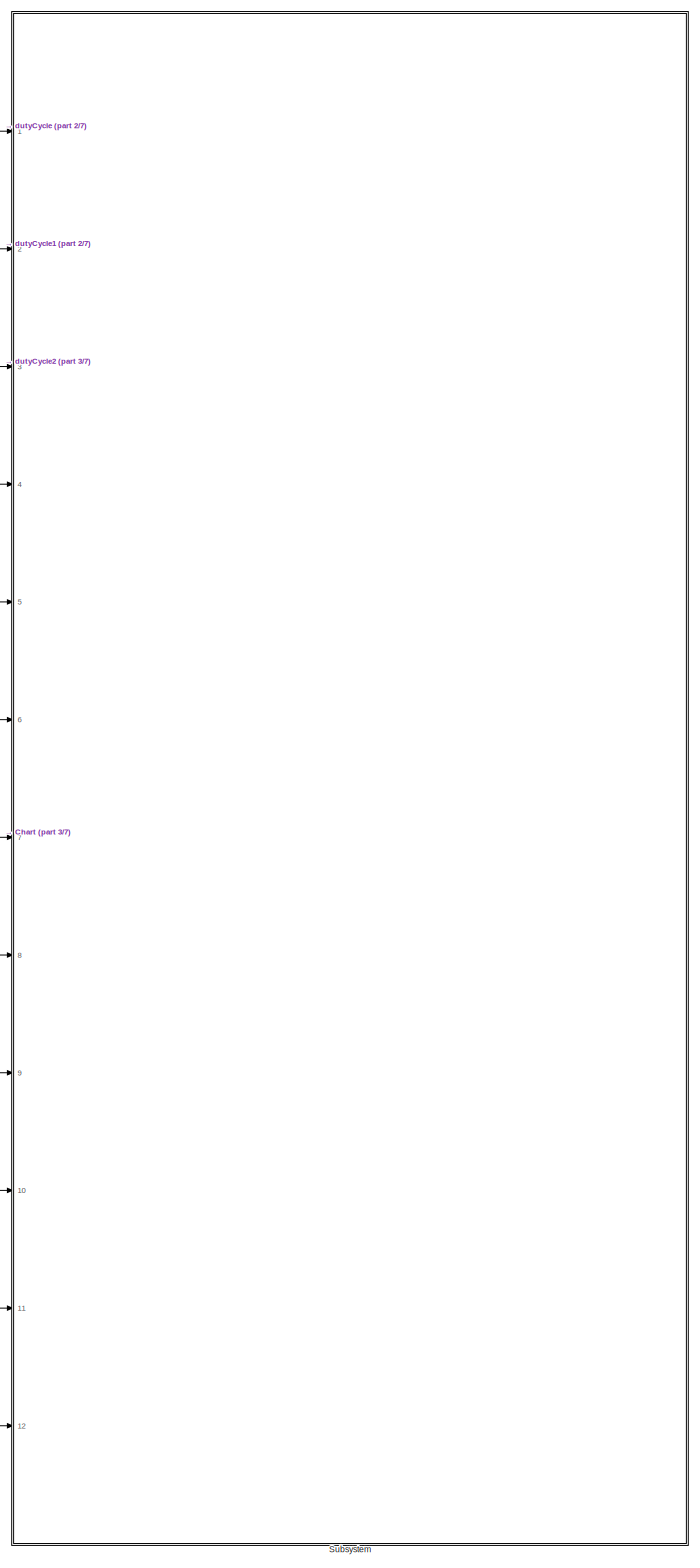
[diagram: root canvas - part 1/7, top right region]
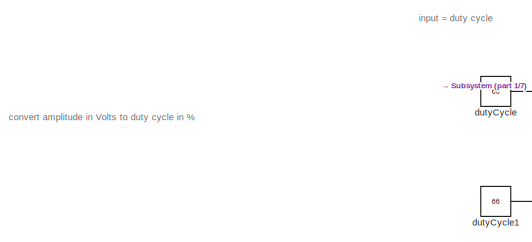
[diagram: root canvas - part 2/7, top center region]
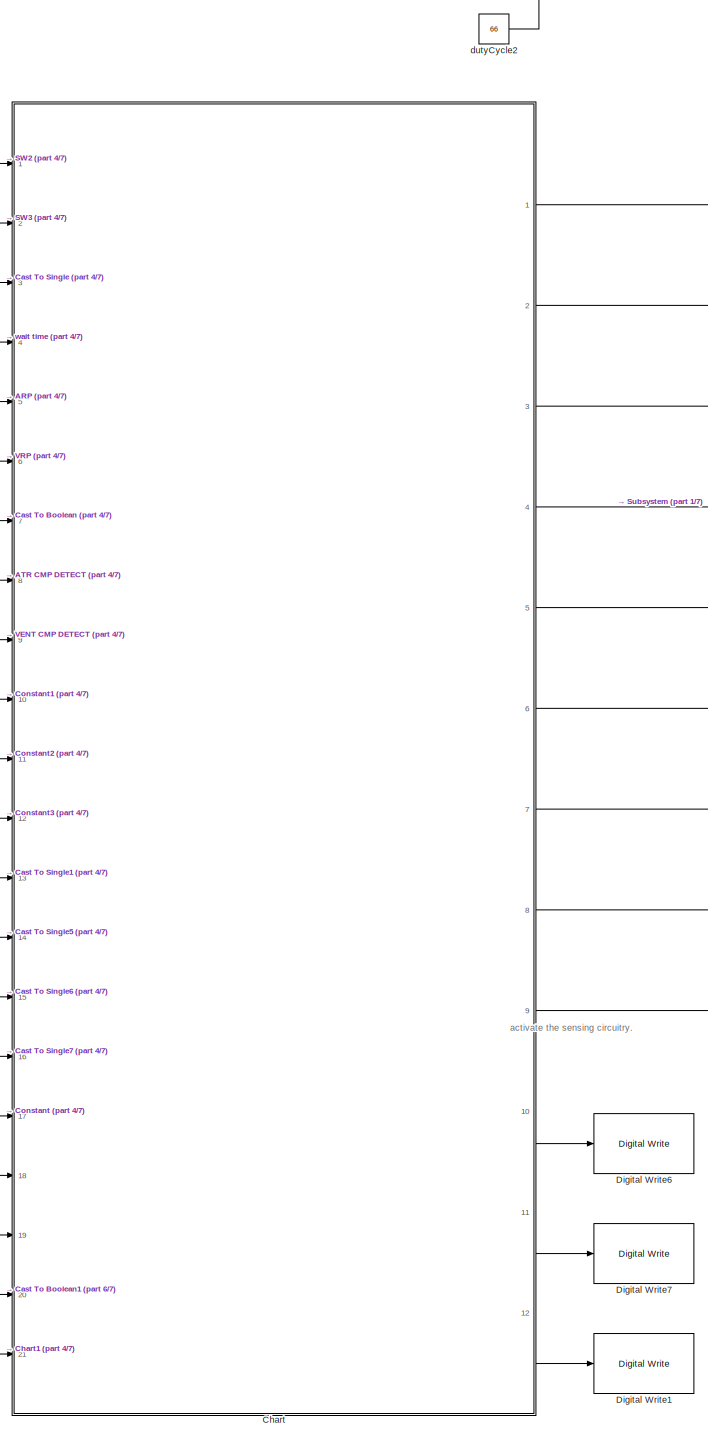
[diagram: root canvas - part 3/7, central region]
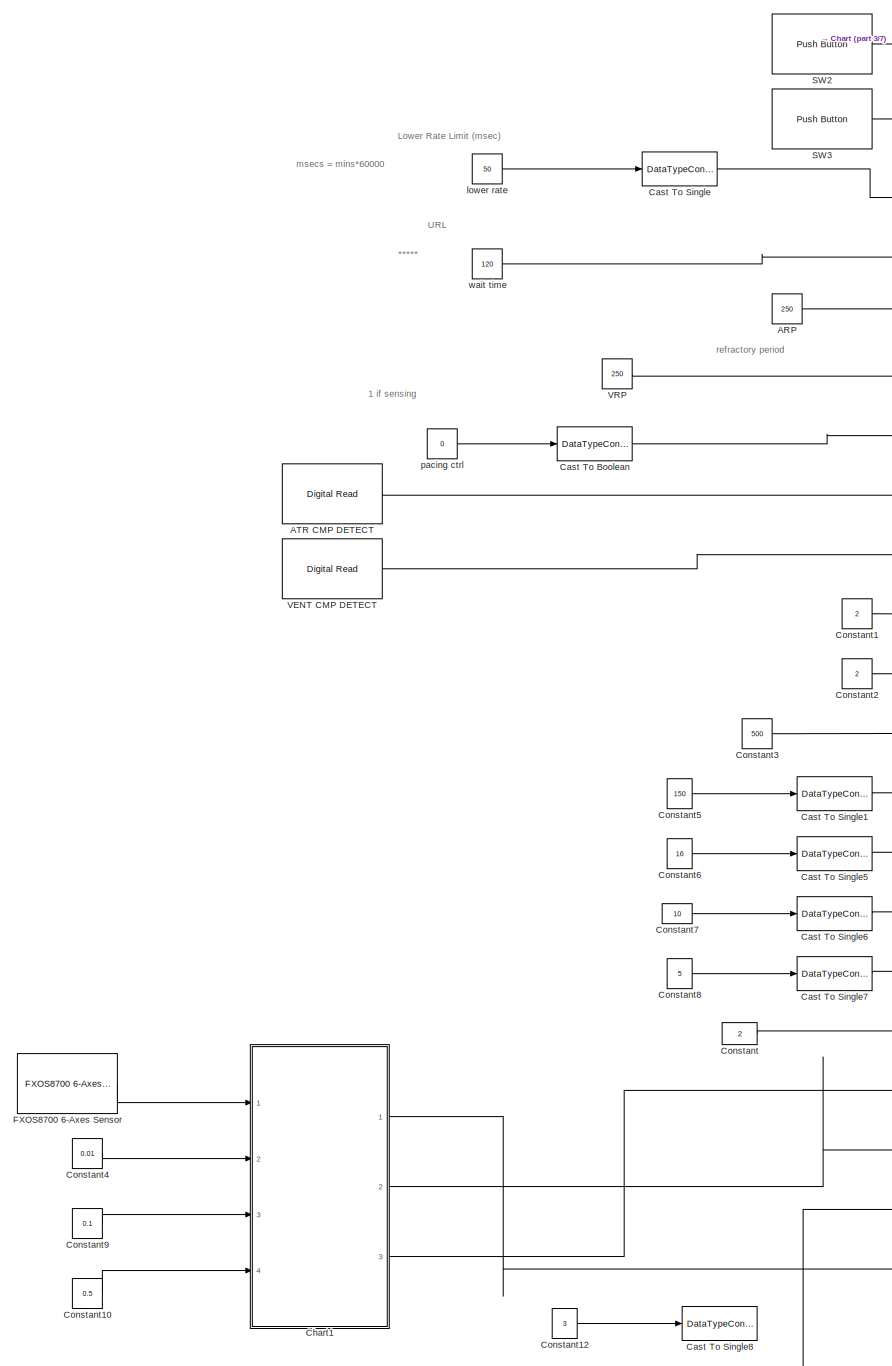
[diagram: root canvas - part 4/7, middle left region]
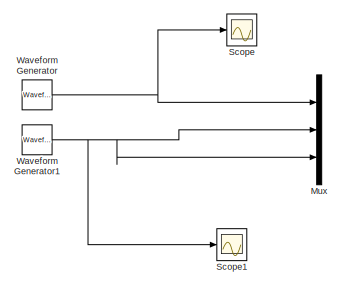
[diagram: root canvas - part 5/7, middle left region]
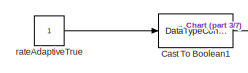
[diagram: root canvas - part 6/7, bottom center region]
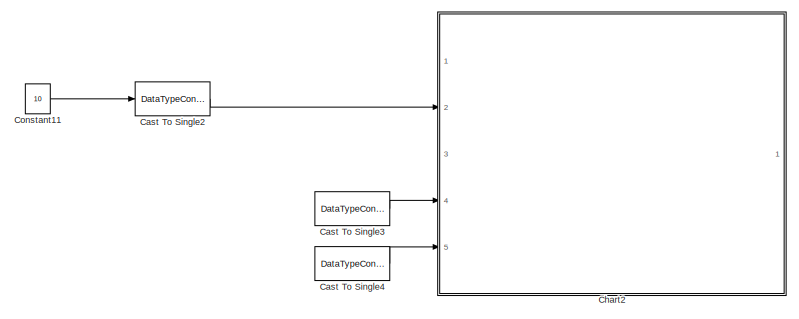
[diagram: root canvas - part 7/7, bottom center region]
MODEL slx_f423dc107bdb
KIND model
CONFIG AbsTol = auto
CONFIG EnableMultiTasking = on
CONFIG FixedStep = 1e-3
CONFIG MaxStep = auto
CONFIG MinStep = auto
CONFIG RelTol = 1e-3
CONFIG SampleTimeConstraint = Unconstrained
CONFIG Solver = FixedStepAuto
CONFIG SolverName = FixedStepAuto
CONFIG StartTime = 0.0
CONFIG StopTime = 10.0
BLOCK [Constant] ARP
  Value = 250
BLOCK [Reference] ATR CMP DETECT  REF=frdmk64flib/Digital Read
  Ports = [0, 1]
  SourceBlock = frdmk64flib/Digital Read
  SourceProductBaseCode = EC_FRDM_K64F
  SourceType = freedomk64f.DigitalRead
BLOCK [DataTypeConversion] Cast To Boolean
  OutDataTypeStr = boolean
  RndMeth = Floor
  SaturateOnIntegerOverflow = off
BLOCK [DataTypeConversion] Cast To Boolean1
  OutDataTypeStr = boolean
  RndMeth = Floor
  SaturateOnIntegerOverflow = off
BLOCK [DataTypeConversion] Cast To Single
  OutDataTypeStr = single
  RndMeth = Floor
  SaturateOnIntegerOverflow = off
BLOCK [DataTypeConversion] Cast To Single1
  OutDataTypeStr = single
  RndMeth = Floor
  SaturateOnIntegerOverflow = off
BLOCK [DataTypeConversion] Cast To Single2
  Commented = on
  OutDataTypeStr = single
  RndMeth = Floor
  SaturateOnIntegerOverflow = off
BLOCK [DataTypeConversion] Cast To Single3
  Commented = on
  OutDataTypeStr = single
  RndMeth = Floor
  SaturateOnIntegerOverflow = off
BLOCK [DataTypeConversion] Cast To Single4
  Commented = on
  OutDataTypeStr = single
  RndMeth = Floor
  SaturateOnIntegerOverflow = off
BLOCK [DataTypeConversion] Cast To Single5
  OutDataTypeStr = single
  RndMeth = Floor
  SaturateOnIntegerOverflow = off
BLOCK [DataTypeConversion] Cast To Single6
  OutDataTypeStr = single
  RndMeth = Floor
  SaturateOnIntegerOverflow = off
BLOCK [DataTypeConversion] Cast To Single7
  OutDataTypeStr = single
  RndMeth = Floor
  SaturateOnIntegerOverflow = off
BLOCK [DataTypeConversion] Cast To Single8
  Commented = on
  OutDataTypeStr = single
  RndMeth = Floor
  SaturateOnIntegerOverflow = off
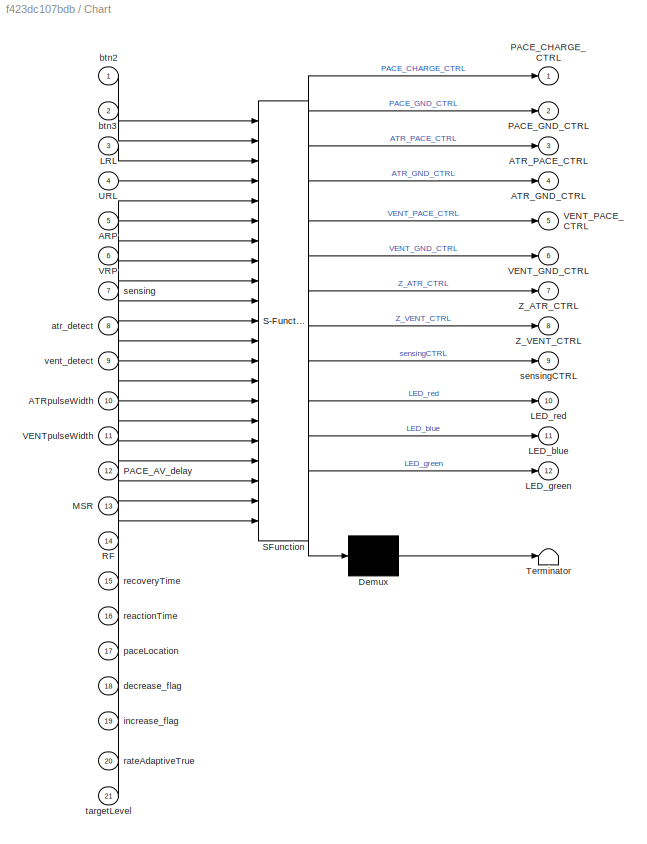
BLOCK [SubSystem] Chart
  ErrorFcn = Stateflow.Translate.translate
  PermitHierarchicalResolution = ExplicitOnly
  Ports = [21, 12]
  RequestExecContextInheritance = off
  SFBlockType = Chart
  TreatAsAtomicUnit = on
BLOCK [Demux] Chart/ Demux 
  Outputs = 1
  Ports = [1, 1]
BLOCK [S-Function] Chart/ SFunction 
  EnableBusSupport = on
  FunctionName = sf_sfun
  PortCounts = [21 13]
  Ports = [21, 13]
  SFcnIsStateOwnerBlock = off
  SFunctionDeploymentMode = off
  Tag = Stateflow S-Function 1
BLOCK [Terminator] Chart/ Terminator 
BLOCK [Inport] Chart/ARP
  Port = 5
BLOCK [Outport] Chart/ATR_GND_CTRL
  Port = 4
BLOCK [Outport] Chart/ATR_PACE_CTRL
  Port = 3
BLOCK [Inport] Chart/ATRpulseWidth
  Port = 10
BLOCK [Outport] Chart/LED_blue
  Port = 11
BLOCK [Outport] Chart/LED_green
  Port = 12
BLOCK [Outport] Chart/LED_red
  Port = 10
BLOCK [Inport] Chart/LRL
  Port = 3
BLOCK [Inport] Chart/MSR
  Port = 13
BLOCK [Inport] Chart/PACE_AV_delay
  Port = 12
BLOCK [Outport] Chart/PACE_CHARGE_CTRL
BLOCK [Outport] Chart/PACE_GND_CTRL
  Port = 2
BLOCK [Inport] Chart/RF
  Port = 14
BLOCK [Inport] Chart/URL
  Port = 4
BLOCK [Outport] Chart/VENT_GND_CTRL
  Port = 6
BLOCK [Outport] Chart/VENT_PACE_CTRL
  Port = 5
BLOCK [Inport] Chart/VENTpulseWidth
  Port = 11
BLOCK [Inport] Chart/VRP
  Port = 6
BLOCK [Outport] Chart/Z_ATR_CTRL
  Port = 7
BLOCK [Outport] Chart/Z_VENT_CTRL
  Port = 8
BLOCK [Inport] Chart/atr_detect
  Port = 8
BLOCK [Inport] Chart/btn2
BLOCK [Inport] Chart/btn3
  Port = 2
BLOCK [Inport] Chart/decrease_flag
  Port = 18
BLOCK [Inport] Chart/increase_flag
  Port = 19
BLOCK [Inport] Chart/paceLocation
  Port = 17
BLOCK [Inport] Chart/rateAdaptiveTrue
  Port = 20
BLOCK [Inport] Chart/reactionTime
  Port = 16
BLOCK [Inport] Chart/recoveryTime
  Port = 15
BLOCK [Inport] Chart/sensing
  Port = 7
BLOCK [Outport] Chart/sensingCTRL
  Port = 9
BLOCK [Inport] Chart/targetLevel
  Port = 21
BLOCK [Inport] Chart/vent_detect
  Port = 9
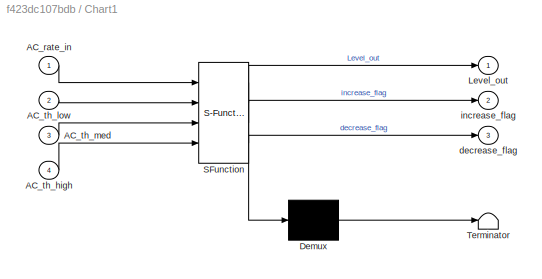
BLOCK [SubSystem] Chart1
  ErrorFcn = Stateflow.Translate.translate
  PermitHierarchicalResolution = ExplicitOnly
  PortSchema = {"entries":[{"content":{"sides":[{"content":{"connectorIds":["In1","In2","In3","In4"]},"type":"ConnectorPlacement.EquallySpacedRectSide","uuid":"1efe160a-bf9a-41df-b710-bd83ffcce0b4"},{"content":{"connectorIds":["Out1","Out3","Out2"],"side":"RIGHT"},"type":"ConnectorPlacement.EquallySpacedRectSide","uuid":"ac30f416-04bb-4c91-9400-e1e71b20eb48"},{"content":{"connectorIds":[],"side":"TOP"},"type":"C...<+274ch>
  Ports = [4, 3]
  RequestExecContextInheritance = off
  SFBlockType = Chart
  TreatAsAtomicUnit = on
BLOCK [Demux] Chart1/ Demux 
  Outputs = 1
  Ports = [1, 1]
BLOCK [S-Function] Chart1/ SFunction 
  EnableBusSupport = on
  FunctionName = sf_sfun
  PortCounts = [4 4]
  Ports = [4, 4]
  SFcnIsStateOwnerBlock = off
  SFunctionDeploymentMode = off
  Tag = Stateflow S-Function 3
BLOCK [Terminator] Chart1/ Terminator 
BLOCK [Inport] Chart1/AC_rate_in
BLOCK [Inport] Chart1/AC_th_high
  Port = 4
BLOCK [Inport] Chart1/AC_th_low
  Port = 2
BLOCK [Inport] Chart1/AC_th_med
  Port = 3
BLOCK [Outport] Chart1/Level_out
BLOCK [Outport] Chart1/decrease_flag
  Port = 3
BLOCK [Outport] Chart1/increase_flag
  Port = 2
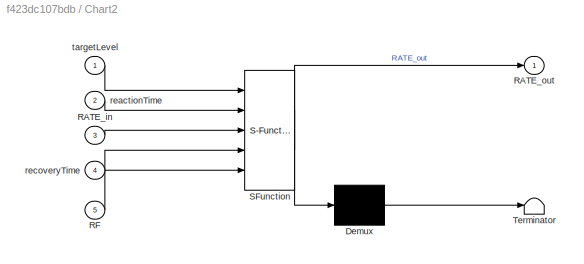
BLOCK [SubSystem] Chart2
  Commented = on
  ErrorFcn = Stateflow.Translate.translate
  PermitHierarchicalResolution = ExplicitOnly
  Ports = [5, 1]
  RequestExecContextInheritance = off
  SFBlockType = Chart
  TreatAsAtomicUnit = on
BLOCK [Demux] Chart2/ Demux 
  Outputs = 1
  Ports = [1, 1]
BLOCK [S-Function] Chart2/ SFunction 
  EnableBusSupport = on
  FunctionName = sf_sfun
  PortCounts = [5 2]
  Ports = [5, 2]
  SFcnIsStateOwnerBlock = off
  SFunctionDeploymentMode = off
  Tag = Stateflow S-Function 2
BLOCK [Terminator] Chart2/ Terminator 
BLOCK [Inport] Chart2/RATE_in
  Port = 3
BLOCK [Outport] Chart2/RATE_out
BLOCK [Inport] Chart2/RF
  Port = 5
BLOCK [Inport] Chart2/reactionTime
  Port = 2
BLOCK [Inport] Chart2/recoveryTime
  Port = 4
BLOCK [Inport] Chart2/targetLevel
BLOCK [Constant] Constant
  OutDataTypeStr = double
  Value = 2
BLOCK [Constant] Constant1
  Value = 2
BLOCK [Constant] Constant10
  OutDataTypeStr = double
  Value = 0.5
BLOCK [Constant] Constant11
  Commented = on
  OutDataTypeStr = double
  Value = 10
BLOCK [Constant] Constant12
  Commented = on
  OutDataTypeStr = double
  Value = 3
BLOCK [Constant] Constant2
  Value = 2
BLOCK [Constant] Constant3
  Value = 500
BLOCK [Constant] Constant4
  OutDataTypeStr = double
  Value = 0.01
BLOCK [Constant] Constant5
  OutDataTypeStr = double
  Value = 150
BLOCK [Constant] Constant6
  OutDataTypeStr = double
  Value = 16
BLOCK [Constant] Constant7
  OutDataTypeStr = double
  Value = 10
BLOCK [Constant] Constant8
  OutDataTypeStr = double
  Value = 5
BLOCK [Constant] Constant9
  OutDataTypeStr = double
  Value = 0.1
BLOCK [Reference] Digital Write1  REF=frdmk64flib/Digital Write
  Ports = [1]
  SourceBlock = frdmk64flib/Digital Write
  SourceProductBaseCode = EC_FRDM_K64F
  SourceType = freedomk64f.DigitalWrite
BLOCK [Reference] Digital Write6  REF=frdmk64flib/Digital Write
  Ports = [1]
  SourceBlock = frdmk64flib/Digital Write
  SourceProductBaseCode = EC_FRDM_K64F
  SourceType = freedomk64f.DigitalWrite
BLOCK [Reference] Digital Write7  REF=frdmk64flib/Digital Write
  Ports = [1]
  SourceBlock = frdmk64flib/Digital Write
  SourceProductBaseCode = EC_FRDM_K64F
  SourceType = freedomk64f.DigitalWrite
BLOCK [Reference] FXOS8700 6-Axes Sensor  REF=frdmk64flib/FXOS8700 6-Axes Sensor
  Ports = [0, 1]
  SourceBlock = frdmk64flib/FXOS8700 6-Axes Sensor
  SourceProductBaseCode = EC_FRDM_K64F
  SourceType = freedomk64f.fxos8700
BLOCK [Mux] Mux
  Commented = on
  DisplayOption = bar
  Inputs = 3
  Ports = [3, 1]
BLOCK [Reference] SW2  REF=frdmk64flib/Push Button
  Ports = [0, 1]
  SourceBlock = frdmk64flib/Push Button
  SourceProductBaseCode = EC_FRDM_K64F
  SourceType = freedomk64f.PushButton
BLOCK [Reference] SW3  REF=frdmk64flib/Push Button
  Ports = [0, 1]
  SourceBlock = frdmk64flib/Push Button
  SourceProductBaseCode = EC_FRDM_K64F
  SourceType = freedomk64f.PushButton
BLOCK [Scope] Scope
  Commented = on
  Floating = off
  NumInputPorts = 1
  Ports = [1]
  ScopeSpecificationString = Simulink.scopes.TimeScopeBlockCfg('CurrentConfiguration', extmgr.ConfigurationSet(extmgr.Configuration('Core','General UI',true),extmgr.Configuration('Core','Source UI',true),extmgr.Configuration('Sources','WiredSimulink',true),extmgr.Configuration('Visuals','Time Domain',true),extmgr.Configuration('Tools','Plot Navigation',true),extmgr.Configuration('Tools','Measurements',true,'Version','2020a'))...<+19ch>
BLOCK [Scope] Scope1
  Commented = on
  Floating = off
  NumInputPorts = 1
  Ports = [1]
  ScopeSpecificationString = Simulink.scopes.TimeScopeBlockCfg('CurrentConfiguration', extmgr.ConfigurationSet(extmgr.Configuration('Core','General UI',true),extmgr.Configuration('Core','Source UI',true),extmgr.Configuration('Sources','WiredSimulink',true,'DataLoggingVariableName','ScopeData1'),extmgr.Configuration('Visuals','Time Domain',true),extmgr.Configuration('Tools','Plot Navigation',true),extmgr.Configuration('Tools',...<+40ch>
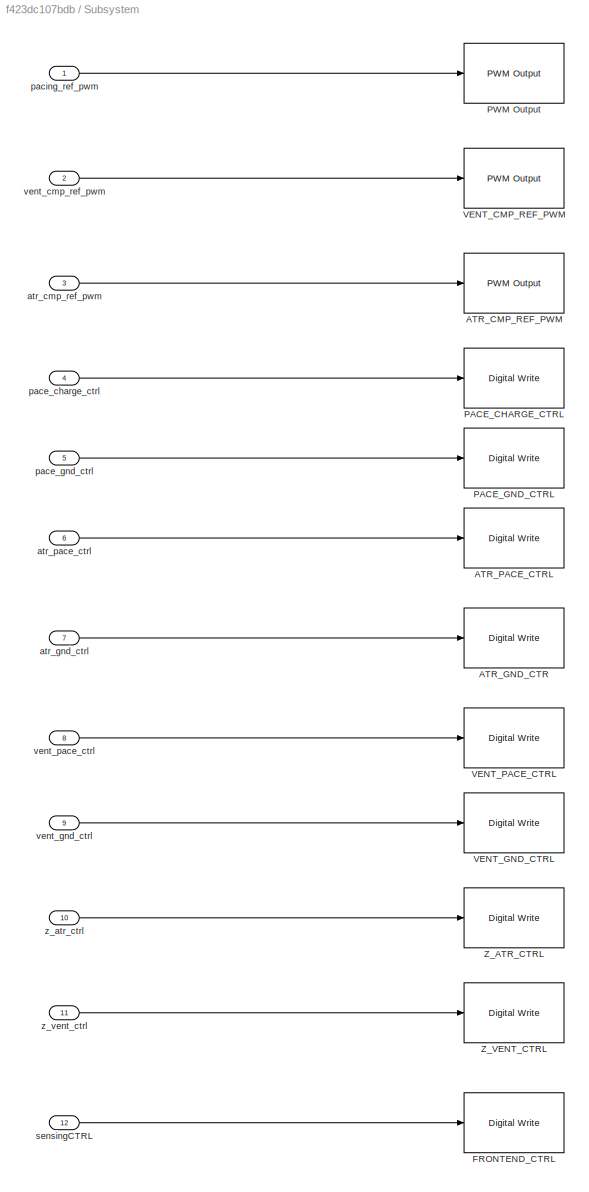
BLOCK [SubSystem] Subsystem
  Ports = [12]
  RequestExecContextInheritance = off
BLOCK [Inport] Subsystem/ z_vent_ctrl
  Port = 11
BLOCK [Reference] Subsystem/ATR_CMP_REF_PWM  REF=frdmk64flib/PWM Output
  Ports = [1]
  SourceBlock = frdmk64flib/PWM Output
  SourceProductBaseCode = EC_FRDM_K64F
  SourceType = freedomk64f.PWMOutput
BLOCK [Reference] Subsystem/ATR_GND_CTR  REF=frdmk64flib/Digital Write
  Ports = [1]
  SourceBlock = frdmk64flib/Digital Write
  SourceProductBaseCode = EC_FRDM_K64F
  SourceType = freedomk64f.DigitalWrite
BLOCK [Reference] Subsystem/ATR_PACE_CTRL  REF=frdmk64flib/Digital Write
  Ports = [1]
  SourceBlock = frdmk64flib/Digital Write
  SourceProductBaseCode = EC_FRDM_K64F
  SourceType = freedomk64f.DigitalWrite
BLOCK [Reference] Subsystem/FRONTEND_CTRL  REF=frdmk64flib/Digital Write
  Ports = [1]
  SourceBlock = frdmk64flib/Digital Write
  SourceProductBaseCode = EC_FRDM_K64F
  SourceType = freedomk64f.DigitalWrite
BLOCK [Reference] Subsystem/PACE_CHARGE_CTRL  REF=frdmk64flib/Digital Write
  Ports = [1]
  SourceBlock = frdmk64flib/Digital Write
  SourceProductBaseCode = EC_FRDM_K64F
  SourceType = freedomk64f.DigitalWrite
BLOCK [Reference] Subsystem/PACE_GND_CTRL  REF=frdmk64flib/Digital Write
  Ports = [1]
  SourceBlock = frdmk64flib/Digital Write
  SourceProductBaseCode = EC_FRDM_K64F
  SourceType = freedomk64f.DigitalWrite
BLOCK [Reference] Subsystem/PWM Output  REF=frdmk64flib/PWM Output
  Ports = [1]
  SourceBlock = frdmk64flib/PWM Output
  SourceProductBaseCode = EC_FRDM_K64F
  SourceType = freedomk64f.PWMOutput
BLOCK [Reference] Subsystem/VENT_CMP_REF_PWM  REF=frdmk64flib/PWM Output
  Ports = [1]
  SourceBlock = frdmk64flib/PWM Output
  SourceProductBaseCode = EC_FRDM_K64F
  SourceType = freedomk64f.PWMOutput
BLOCK [Reference] Subsystem/VENT_GND_CTRL  REF=frdmk64flib/Digital Write
  Ports = [1]
  SourceBlock = frdmk64flib/Digital Write
  SourceProductBaseCode = EC_FRDM_K64F
  SourceType = freedomk64f.DigitalWrite
BLOCK [Reference] Subsystem/VENT_PACE_CTRL  REF=frdmk64flib/Digital Write
  Ports = [1]
  SourceBlock = frdmk64flib/Digital Write
  SourceProductBaseCode = EC_FRDM_K64F
  SourceType = freedomk64f.DigitalWrite
BLOCK [Reference] Subsystem/Z_ATR_CTRL  REF=frdmk64flib/Digital Write
  Ports = [1]
  SourceBlock = frdmk64flib/Digital Write
  SourceProductBaseCode = EC_FRDM_K64F
  SourceType = freedomk64f.DigitalWrite
BLOCK [Reference] Subsystem/Z_VENT_CTRL  REF=frdmk64flib/Digital Write
  Ports = [1]
  SourceBlock = frdmk64flib/Digital Write
  SourceProductBaseCode = EC_FRDM_K64F
  SourceType = freedomk64f.DigitalWrite
BLOCK [Inport] Subsystem/atr_cmp_ref_pwm
  Port = 3
BLOCK [Inport] Subsystem/atr_gnd_ctrl
  Port = 7
BLOCK [Inport] Subsystem/atr_pace_ctrl
  Port = 6
BLOCK [Inport] Subsystem/pace_charge_ctrl
  Port = 4
BLOCK [Inport] Subsystem/pace_gnd_ctrl
  Port = 5
BLOCK [Inport] Subsystem/pacing_ref_pwm
BLOCK [Inport] Subsystem/sensingCTRL
  Port = 12
BLOCK [Inport] Subsystem/vent_cmp_ref_pwm
  Port = 2
BLOCK [Inport] Subsystem/vent_gnd_ctrl
  Port = 9
BLOCK [Inport] Subsystem/vent_pace_ctrl
  Port = 8
BLOCK [Inport] Subsystem/z_atr_ctrl
  Port = 10
BLOCK [Reference] VENT CMP DETECT  REF=frdmk64flib/Digital Read
  Ports = [0, 1]
  SourceBlock = frdmk64flib/Digital Read
  SourceProductBaseCode = EC_FRDM_K64F
  SourceType = freedomk64f.DigitalRead
BLOCK [Constant] VRP
  Value = 250
BLOCK [Reference] Waveform Generator  REF=simulink/Sources/Waveform
Generator
  Commented = on
  Ports = [0, 1]
  SourceBlock = simulink/Sources/Waveform\nGenerator
  SourceProductBaseCode = SL
  SourceType = WaveformGenerator
BLOCK [Reference] Waveform Generator1  REF=simulink/Sources/Waveform
Generator
  Commented = on
  Ports = [0, 1]
  SourceBlock = simulink/Sources/Waveform\nGenerator
  SourceProductBaseCode = SL
  SourceType = WaveformGenerator
BLOCK [Constant] dutyCycle
  Value = 66
BLOCK [Constant] dutyCycle1
  Value = 66
BLOCK [Constant] dutyCycle2
  Value = 66
BLOCK [Constant] lower rate
  Value = 50
BLOCK [Constant] pacing ctrl
  Value = 0
BLOCK [Constant] rateAdaptiveTrue
BLOCK [Constant] wait time
  Value = 120
ANNOTATION (root): *****
ANNOTATION (root): 1 if sensing
ANNOTATION (root): convert amplitude in Volts to duty cycle in %
ANNOTATION (root): Lower Rate Limit (msec)
ANNOTATION (root): URL
ANNOTATION (root): activate the sensing circuitry.
ANNOTATION (root): input = duty cycle
ANNOTATION (root): msecs = mins*60000
ANNOTATION (root): refractory period
LINE ARP:1 -> Chart:5
LINE ATR CMP DETECT:1 -> Chart:8
LINE Cast To Boolean1:1 -> Chart:20
LINE Cast To Boolean:1 -> Chart:7
LINE Cast To Single1:1 -> Chart:13
LINE Cast To Single2:1 -> Chart2:2
LINE Cast To Single3:1 -> Chart2:4
LINE Cast To Single4:1 -> Chart2:5
LINE Cast To Single5:1 -> Chart:14
LINE Cast To Single6:1 -> Chart:15
LINE Cast To Single7:1 -> Chart:16
LINE Cast To Single:1 -> Chart:3
LINE Chart1:1 -> Chart:21
LINE Chart1:2 -> Chart:19
LINE Chart1:3 -> Chart:18
LINE Chart:1 -> Subsystem:4
LINE Chart:10 -> Digital Write6:1
LINE Chart:11 -> Digital Write7:1
LINE Chart:12 -> Digital Write1:1
LINE Chart:2 -> Subsystem:5
LINE Chart:3 -> Subsystem:6
LINE Chart:4 -> Subsystem:7
LINE Chart:5 -> Subsystem:8
LINE Chart:6 -> Subsystem:9
LINE Chart:7 -> Subsystem:10
LINE Chart:8 -> Subsystem:11
LINE Chart:9 -> Subsystem:12
LINE Constant10:1 -> Chart1:4
LINE Constant11:1 -> Cast To Single2:1
LINE Constant12:1 -> Cast To Single8:1
LINE Constant1:1 -> Chart:10
LINE Constant2:1 -> Chart:11
LINE Constant3:1 -> Chart:12
LINE Constant4:1 -> Chart1:2
LINE Constant5:1 -> Cast To Single1:1
LINE Constant6:1 -> Cast To Single5:1
LINE Constant7:1 -> Cast To Single6:1
LINE Constant8:1 -> Cast To Single7:1
LINE Constant9:1 -> Chart1:3
LINE Constant:1 -> Chart:17
LINE FXOS8700 6-Axes Sensor:1 -> Chart1:1
LINE SW2:1 -> Chart:1
LINE SW3:1 -> Chart:2
LINE Subsystem/ z_vent_ctrl:1 -> Subsystem/Z_VENT_CTRL:1
LINE Subsystem/atr_cmp_ref_pwm:1 -> Subsystem/ATR_CMP_REF_PWM:1
LINE Subsystem/atr_gnd_ctrl:1 -> Subsystem/ATR_GND_CTR:1
LINE Subsystem/atr_pace_ctrl:1 -> Subsystem/ATR_PACE_CTRL:1
LINE Subsystem/pace_charge_ctrl:1 -> Subsystem/PACE_CHARGE_CTRL:1
LINE Subsystem/pace_gnd_ctrl:1 -> Subsystem/PACE_GND_CTRL:1
LINE Subsystem/pacing_ref_pwm:1 -> Subsystem/PWM Output:1
LINE Subsystem/sensingCTRL:1 -> Subsystem/FRONTEND_CTRL:1
LINE Subsystem/vent_cmp_ref_pwm:1 -> Subsystem/VENT_CMP_REF_PWM:1
LINE Subsystem/vent_gnd_ctrl:1 -> Subsystem/VENT_GND_CTRL:1
LINE Subsystem/vent_pace_ctrl:1 -> Subsystem/VENT_PACE_CTRL:1
LINE Subsystem/z_atr_ctrl:1 -> Subsystem/Z_ATR_CTRL:1
LINE VENT CMP DETECT:1 -> Chart:9
LINE VRP:1 -> Chart:6
NET Waveform Generator1:1 -> Mux:2, Mux:3, Scope1:1
NET Waveform Generator:1 -> Mux:1, Scope:1
LINE dutyCycle1:1 -> Subsystem:2
LINE dutyCycle2:1 -> Subsystem:3
LINE dutyCycle:1 -> Subsystem:1
LINE lower rate:1 -> Cast To Single:1
LINE pacing ctrl:1 -> Cast To Boolean:1
LINE rateAdaptiveTrue:1 -> Cast To Boolean1:1
LINE wait time:1 -> Chart:4
note: NET lines group one-source signal fan-out (src -> all destinations, sorted); 1:1 wires keep LINE
CHART Chart states=42 transitions=64
  STATE_LABEL 'if level = 0\nRATE = LRL\n\nif level = 1\nRATE = LRL + ResponseFactor\n\nif level = 2\nRATE = LRL + 2*ResponseFactor\n\nif level = 3\nRATE = LRL + 3*ResponseFactor'
  STATE_LABEL 'IF target level > previous level'
  STATE_LABEL 'target Level = LEVEL'
  STATE_LABEL 'INCREMENT_VENT\nentry:\nincrementTime=reactionTime/((TargetLevel - PreviousLevel)*RF);\n% time/BPM increase\n'
  STATE_LABEL 'incrementTime=reactionTime/((TargetLevel - PreviousLevel)*RF)'
  STATE_LABEL 'R_MODE'
  STATE_LABEL "for VOO,VVI, so it don't go to REACTION_V and RECOVERY_V"
  STATE_LABEL 'adaptRATE_vent\n% RE factor need to time a rate (unit ppm)\n%it is depend on LRL and MSR values\n%RATE_out = RATE\nRATE = RATE + incrementAmount;\nLED_red = false;\nLED_blue= false;\nLED_green = false;\n%previousLevel = floor((RATE-LRL)/RF);\n'
  STATE_LABEL 'SENSING_VENT_TRUE \nentry:\nsensingCTRL = true;'
  STATE_LABEL 'no change in RATE needed'
  STATE_LABEL 'VENT_CHARGING_AND_DISCHARGE \nentry:\n% for this state paceLocation = 1\n%begin charge and discharge cycle for ventricle\nmsecPerPace = 60000.0/RATE; %new value in msec\nsensingCTRL = sensing; %enables the sensing circuitry if sensing = 1. Controled by input "sensing"\nATR_PACE_CTRL = false;\nVENT_PACE_CTRL = false;\nPACE_CHARGE_CTRL = true;\nPACE_GND_CTRL = true;\nZ_VENT_CTRL = false;\nZ_ATR_CTRL = false\nVE...<+59ch>'
  STATE_LABEL 'VENT_PACING\nentry:\n% pace ventricle\nPACE_CHARGE_CTRL = false;\nPACE_GND_CTRL = true;\nVENT_PACE_CTRL = true;\nVENT_GND_CTRL = false;\nZ_VENT_CTRL = false;\nZ_ATR_CTRL = false;\nATR_GND_CTRL = false;\nATR_PACE_CTRL = false;\nsensingCTRL = sensing; %enables the sensing circuitry if sensing = 1. Controled by input "sensing"\n%VENT_P_flag = true; %pacing flag for V modes\n%recovery\n%recoveryTime_remaining = rec...<+65ch>'
  STATE_LABEL 'new Idea! \n\nsecPerPace = msecPerPace/1000\n\nreactionTime/secPerPace = # of paces inside reactionTime'
  STATE_LABEL '<!DOCTYPE HTML PUBLIC "-//W3C//DTD HTML 4.0//EN" "http://www.w3.org/TR/REC-html40/strict.dtd">\n<html><head><meta name="qrichtext" content="1" /><style type="text/css">\np, li { white-space: pre-wrap; }\n</style></head><body align="left" style=" font-family:\'Helvetica\'; font-size:12px; font-weight:400; font-style:normal;">\n<p align="left" style=" margin-top:0px; margin-bottom:0px; margin-left:0px; ma...<+120ch>'
  STATE_LABEL '<!DOCTYPE HTML PUBLIC "-//W3C//DTD HTML 4.0//EN" "http://www.w3.org/TR/REC-html40/strict.dtd">\n<html><head><meta name="qrichtext" content="1" /><style type="text/css">\np, li { white-space: pre-wrap; }\n</style></head><body align="left" style=" font-family:\'Helvetica\'; font-size:12px; font-weight:400; font-style:normal;">\n<p align="left" style=" margin-top:0px; margin-bottom:0px; margin-left:0px; ma...<+119ch>'
  STATE_LABEL '<!DOCTYPE HTML PUBLIC "-//W3C//DTD HTML 4.0//EN" "http://www.w3.org/TR/REC-html40/strict.dtd">\n<html><head><meta name="qrichtext" content="1" /><style type="text/css">\np, li { white-space: pre-wrap; }\n</style></head><body align="left" style=" font-family:\'Helvetica\'; font-size:12px; font-weight:400; font-style:normal;">\n<p align="left" style=" margin-top:0px; margin-bottom:0px; margin-left:0px; ma...<+119ch>'
  STATE_LABEL '<!DOCTYPE HTML PUBLIC "-//W3C//DTD HTML 4.0//EN" "http://www.w3.org/TR/REC-html40/strict.dtd">\n<html><head><meta name="qrichtext" content="1" /><style type="text/css">\np, li { white-space: pre-wrap; }\n</style></head><body align="left" style=" font-family:\'Helvetica\'; font-size:12px; font-weight:400; font-style:normal;">\n<p align="left" style=" margin-top:0px; margin-bottom:0px; margin-left:0px; ma...<+108ch>'
  STATE_LABEL 'eg if reactionTIme = 10 and RATE = 60 BPM\n10/1 =10 \n\nincrementAmount = (targetLevel-previousLevel)*RF/(# of paces inside reactionTime)\n\nso each cycle RATE = RATE + incrementAmount'
  STATE_LABEL 'count = reactionTime/secPerPace = # of paces inside reactionTime '
  STATE_LABEL '<!DOCTYPE HTML PUBLIC "-//W3C//DTD HTML 4.0//EN" "http://www.w3.org/TR/REC-html40/strict.dtd">\n<html><head><meta name="qrichtext" content="1" /><style type="text/css">\np, li { white-space: pre-wrap; }\n</style></head><body align="left" style=" font-family:\'Helvetica\'; font-size:12px; font-weight:400; font-style:normal;">\n<p align="left" style=" margin-top:0px; margin-bottom:0px; margin-left:0px; ma...<+121ch>'  <repeated x3 — deduplicated; at blocks: Chart>
  STATE_LABEL 'SWITCH TO VOO,VVI,VOOR,VVIR'
  STATE_LABEL 'RECOVERY_V\nRATE = RATE - LEVEL*RE_factor\n% RE factor need to time a rate (unit ppm)\n%it is depend on LRL and MSR values'
  STATE_LABEL 'REACTION_V\nRATE = RATE + LEVEL*RE_factor;\n% RE factor need to time a rate (unit ppm)\n%it is depend on LRL and MSR values'
  STATE_LABEL 'SWITCH TO AOO, AAI,AOOR,AAIR'
  STATE_LABEL 'ATR_PACING\nentry:\n% pace atrium\nPACE_GND_CTRL = true;\nVENT_PACE_CTRL = false;\nVENT_GND_CTRL = false;\nZ_VENT_CTRL = false;\nZ_ATR_CTRL = false;\nATR_GND_CTRL = false;\nATR_PACE_CTRL = true;\nsensingCTRL = sensing; %enables the sensing circuitry if sensing = 1. Controled by input "sensing"\nATR_P_flag = true; %pacing flag for V modes'
  STATE_LABEL 'SWITCH TO DOO,DOOR'
  STATE_LABEL 'ATR_CHARGING_AND_DISCHARGE\nentry:\n% for this state paceLocation = 0\n%begin charge and discharge cycle for atrium\nmsecPerPace = 60000/RATE; %new value for pace timing with msec units\nsensingCTRL = sensing; %enables the sensing circuitry if sensing = 1. Controled by input "sensing"\nATR_PACE_CTRL = false;\nVENT_PACE_CTRL = false;\nPACE_CHARGE_CTRL = true;\nPACE_GND_CTRL = true;\nZ_VENT_CTRL = false;\nZ_AT...<+60ch>'
  STATE_LABEL 'R_MODE'
  STATE_LABEL '<!DOCTYPE HTML PUBLIC "-//W3C//DTD HTML 4.0//EN" "http://www.w3.org/TR/REC-html40/strict.dtd">\n<html><head><meta name="qrichtext" content="1" /><style type="text/css">\np, li { white-space: pre-wrap; }\n</style></head><body align="left" style=" font-family:\'Helvetica\'; font-size:12px; font-weight:400; font-style:normal;">\n<p align="left" style=" margin-top:0px; margin-bottom:0px; margin-left:0px; ma...<+120ch>'
  STATE_LABEL 'SWITCH TO VOO,VVI,VOOR,VVIR'
  STATE_LABEL 'SENSING_ATR_TRUE \nentry:\nsensingCTRL = true;'
  STATE_LABEL 'SWITCH TO DOO,DOOR'
  STATE_LABEL 'RECOVERY_V1\nRATE = RATE - LEVEL*RE_factor\n% RE factor need to time a rate (unit ppm)\n%it is depend on LRL and MSR values'
  STATE_LABEL 'SWITCH TO AOO, AAI,AOOR,AAIR'
  STATE_LABEL 'REACTION_V1\nRATE = RATE + LEVEL*RE_factor;\n% RE factor need to time a rate (unit ppm)\n%it is depend on LRL and MSR values'
  STATE_LABEL 'DUAL_ATR_CHARGING_AND_DISCHARGE\nentry:\nmsecPerPace = 60000/RATE;\n% for this state paceLocation = 3\n%begin charge and discharge cycle for atrium\nATR_PACE_CTRL = false;\nVENT_PACE_CTRL = false;\nPACE_CHARGE_CTRL = true;\nPACE_GND_CTRL = true;\nZ_VENT_CTRL = false;\nZ_ATR_CTRL = false;\nVENT_GND_CTRL = false;\nATR_GND_CTRL = true;\n'
  STATE_LABEL 'DUAL_ATR_PACING\nentry:\n% pace atrium\nPACE_GND_CTRL = true;\nVENT_PACE_CTRL = false;\nVENT_GND_CTRL = false;\nZ_VENT_CTRL = false;\nZ_ATR_CTRL = false;\nATR_GND_CTRL = false;\nATR_PACE_CTRL = true;\nAP_flag = true; % rise to true when Atrium have a pace\n'
  STATE_LABEL '<!DOCTYPE HTML PUBLIC "-//W3C//DTD HTML 4.0//EN" "http://www.w3.org/TR/REC-html40/strict.dtd">\n<html><head><meta name="qrichtext" content="1" /><style type="text/css">\np, li { white-space: pre-wrap; }\n</style></head><body align="left" style=" font-family:\'Helvetica\'; font-size:12px; font-weight:400; font-style:normal;">\n<p align="left" style=" margin-top:0px; margin-bottom:0px; margin-left:0px; ma...<+118ch>'
CHART Chart2 states=9 transitions=9
  STATE_LABEL 'if level = 0\nRATE = LRL\n\nif level = 1\nRATE = LRL + ResponseFactor\n\nif level = 2\nRATE = LRL + 2*ResponseFactor\n\nif level = 3\nRATE = LRL + 3*ResponseFactor'
  STATE_LABEL 'START\nentry:\nreactionTime_remaining = reactionTime;\nrecoveryTime_remaining = recoveryTime;\nRATE_out = RATE_in;'
  STATE_LABEL 'incrementTime=reactionTime/((TargetLevel - PreviousLevel)*RF)'
  STATE_LABEL 'IF target level > previous level'
  STATE_LABEL 'IF target level < previous level'
  STATE_LABEL 'decrease'
  STATE_LABEL 'Increase'
  STATE_LABEL 'INCREMENT\nentry:\nincrementTime=reactionTime/((targetLevel - previousLevel)*RF);\n% time/BPM increase\n'
  STATE_LABEL 'DECREMENT\nentry:\ndecrementTime=recoveryTime/((previousLevel - targetLevel)*RF);\n% time/BPM increase\n'
CHART Chart1 states=8 transitions=17
  STATE_LABEL 'any of the directions > HIGH (running)'
  STATE_LABEL 'ALL Directions <= LOW (still)'
  STATE_LABEL 'rest\nLevel_out = 0;\nprev_level = 0;\n'
  STATE_LABEL 'Get_data\nAC_x = abs(AC_rate_in(1));\nAC_y = abs(AC_rate_in(2));\nAC_z = abs(AC_rate_in(3));\n'
  STATE_LABEL 'high\nLevel_out = 3;\nprev_level = 3;\n'
  STATE_LABEL 'any direction <= MED (walking)'
  STATE_LABEL 'low\nLevel_out = 1;\nprev_level = 1;'
  STATE_LABEL 'med\nLevel_out = 2;\nprev_level = 2;\n'
CHART  states=0 transitions=0
CHART  states=0 transitions=0
CHART  states=0 transitions=0
